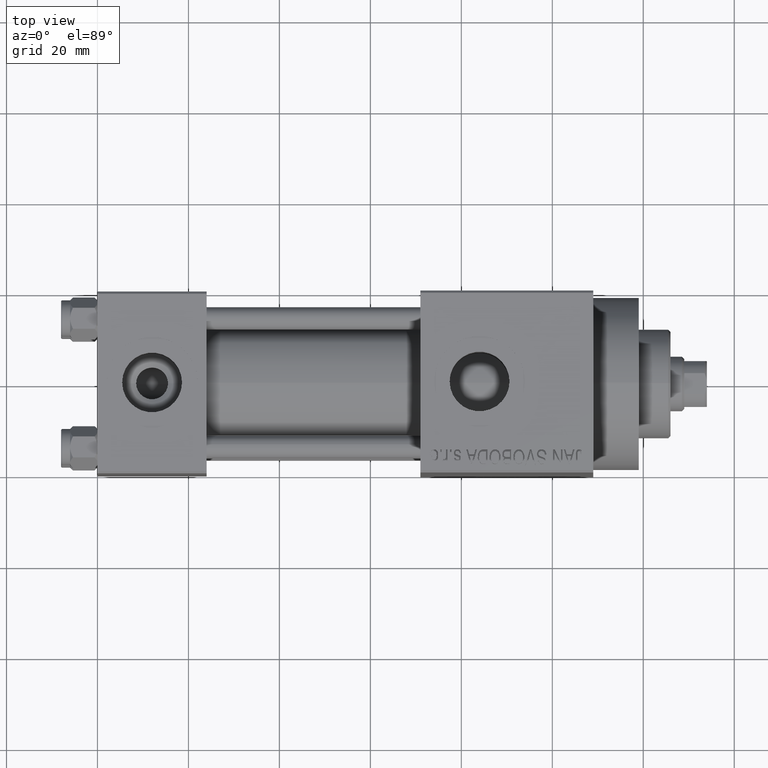
[diagram: clean part render]
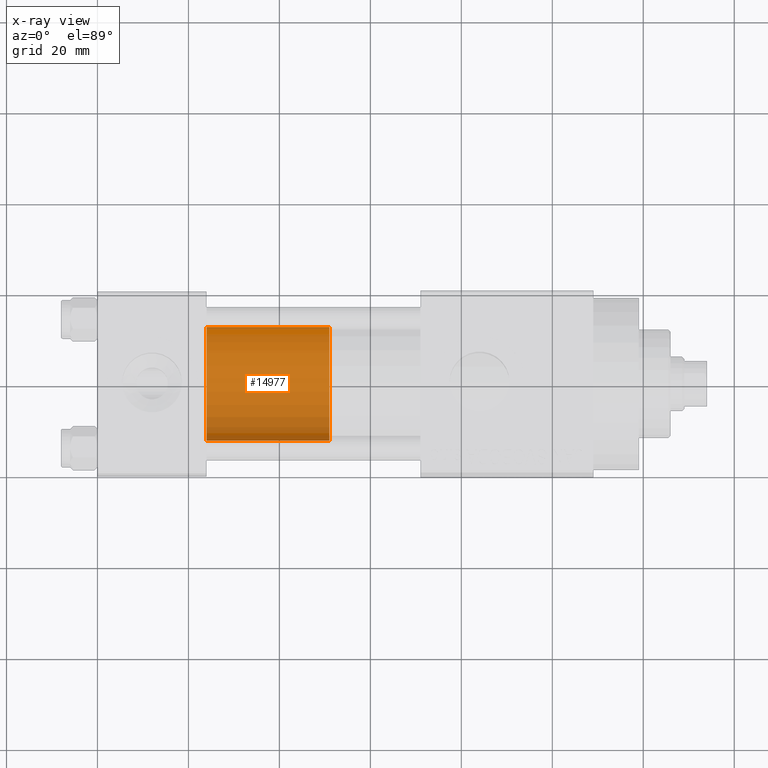
[diagram: x-ray — body ghosted, one internal face saturated and labeled with its STEP entity id]
A machine part, top view, then the same camera in x-ray: the body is ghosted and one INTERNAL B-rep face — a face not visible from any outside direction — is saturated and labeled: STEP entity #14977.
In plain terms, the highlighted cylindrical surface (partial cylindrical patch) has radius 12.5 mm, axis along (-1, 0, 0).
Its self-contained STEP definition (entity closure, byte-faithful):
#508 = EDGE_CURVE ( 'NONE', #27844, #9950, #31008, .T. ) ;
#710 = CYLINDRICAL_SURFACE ( 'NONE', #16427, 12.50000000000000000 ) ;
#1386 = DIRECTION ( 'NONE',  ( 0.000000000000000000, 0.000000000000000000, 1.000000000000000000 ) ) ;
#1745 = VECTOR ( 'NONE', #37761, 1000.000000000000000 ) ;
#2352 = VERTEX_POINT ( 'NONE', #39915 ) ;
#2539 = VECTOR ( 'NONE', #43942, 1000.000000000000000 ) ;
#4931 = EDGE_CURVE ( 'NONE', #9950, #2352, #8718, .T. ) ;
#7854 = FACE_OUTER_BOUND ( 'NONE', #45832, .T. ) ;
#8498 = VERTEX_POINT ( 'NONE', #12379 ) ;
#8718 = LINE ( 'NONE', #23249, #1745 ) ;
#9734 = AXIS2_PLACEMENT_3D ( 'NONE', #26545, #45104, #23668 ) ;
#9821 = AXIS2_PLACEMENT_3D ( 'NONE', #27726, #1386, #15911 ) ;
#9950 = VERTEX_POINT ( 'NONE', #23067 ) ;
#12379 = CARTESIAN_POINT ( 'NONE',  ( 12.50000000000000000, 1.530808498934191521E-15, 0.000000000000000000 ) ) ;
#14977 = ADVANCED_FACE ( 'NONE', ( #7854 ), #710, .T. ) ;
#15870 = ORIENTED_EDGE ( 'NONE', *, *, #27630, .T. ) ;
#15911 = DIRECTION ( 'NONE',  ( 1.000000000000000000, 0.000000000000000000, 0.000000000000000000 ) ) ;
#16184 = ORIENTED_EDGE ( 'NONE', *, *, #508, .F. ) ;
#16427 = AXIS2_PLACEMENT_3D ( 'NONE', #37615, #34283, #40689 ) ;
#21374 = ORIENTED_EDGE ( 'NONE', *, *, #42550, .T. ) ;
#23067 = CARTESIAN_POINT ( 'NONE',  ( -12.50000000000000000, 0.000000000000000000, 27.00000000000000000 ) ) ;
#23249 = CARTESIAN_POINT ( 'NONE',  ( -12.50000000000000000, 0.000000000000000000, 27.00000000000000000 ) ) ;
#23668 = DIRECTION ( 'NONE',  ( 1.000000000000000000, 0.000000000000000000, 0.000000000000000000 ) ) ;
#26545 = CARTESIAN_POINT ( 'NONE',  ( 0.000000000000000000, 0.000000000000000000, 27.00000000000000000 ) ) ;
#27630 = EDGE_CURVE ( 'NONE', #8498, #2352, #38745, .T. ) ;
#27726 = CARTESIAN_POINT ( 'NONE',  ( 0.000000000000000000, 0.000000000000000000, 0.000000000000000000 ) ) ;
#27844 = VERTEX_POINT ( 'NONE', #41000 ) ;
#29440 = CARTESIAN_POINT ( 'NONE',  ( 12.50000000000000000, 1.530808498934191521E-15, 27.00000000000000000 ) ) ;
#30559 = ORIENTED_EDGE ( 'NONE', *, *, #4931, .F. ) ;
#31008 = CIRCLE ( 'NONE', #9734, 12.50000000000000000 ) ;
#33012 = LINE ( 'NONE', #29440, #2539 ) ;
#34283 = DIRECTION ( 'NONE',  ( -0.000000000000000000, -0.000000000000000000, -1.000000000000000000 ) ) ;
#37615 = CARTESIAN_POINT ( 'NONE',  ( 0.000000000000000000, 0.000000000000000000, 27.00000000000000000 ) ) ;
#37761 = DIRECTION ( 'NONE',  ( -0.000000000000000000, -0.000000000000000000, -1.000000000000000000 ) ) ;
#38745 = CIRCLE ( 'NONE', #9821, 12.50000000000000000 ) ;
#39915 = CARTESIAN_POINT ( 'NONE',  ( -12.50000000000000000, 0.000000000000000000, 0.000000000000000000 ) ) ;
#40689 = DIRECTION ( 'NONE',  ( -1.000000000000000000, 0.000000000000000000, 0.000000000000000000 ) ) ;
#41000 = CARTESIAN_POINT ( 'NONE',  ( 12.50000000000000000, 1.530808498934191521E-15, 27.00000000000000000 ) ) ;
#42550 = EDGE_CURVE ( 'NONE', #27844, #8498, #33012, .T. ) ;
#43942 = DIRECTION ( 'NONE',  ( -0.000000000000000000, -0.000000000000000000, -1.000000000000000000 ) ) ;
#45104 = DIRECTION ( 'NONE',  ( 0.000000000000000000, 0.000000000000000000, 1.000000000000000000 ) ) ;
#45832 = EDGE_LOOP ( 'NONE', ( #16184, #21374, #15870, #30559 ) ) ;